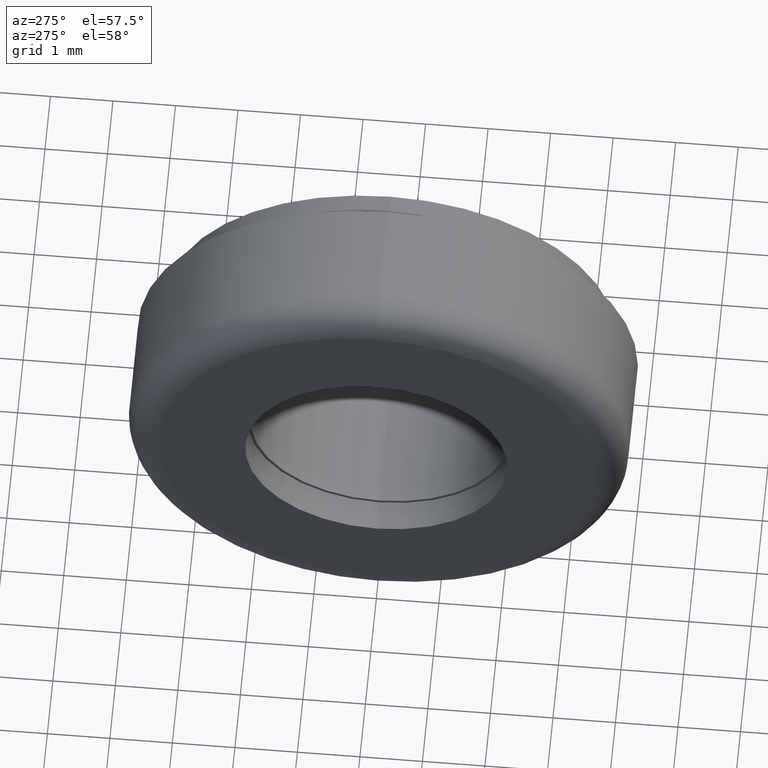
[diagram: clean part render]
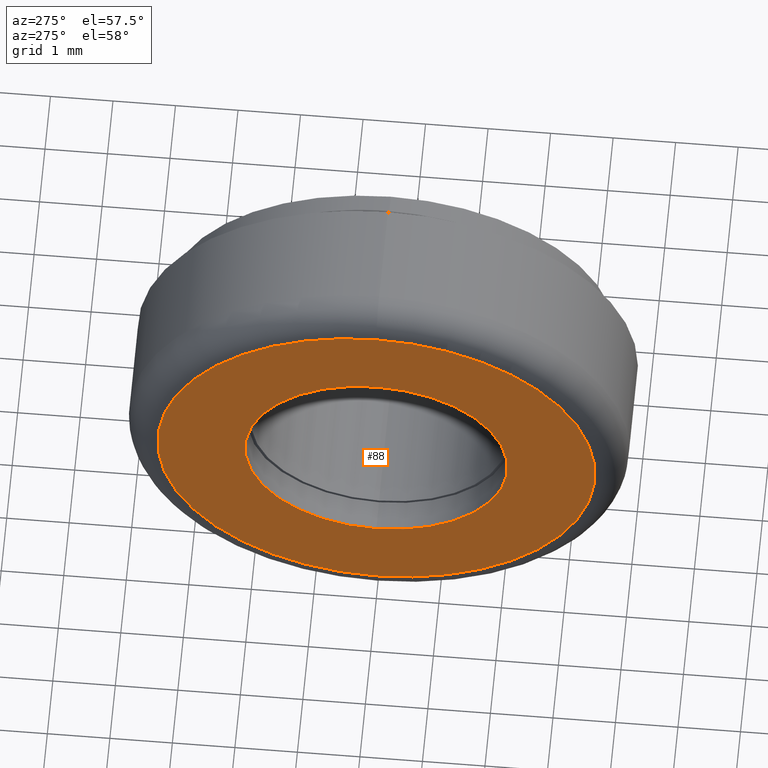
[diagram: same view with one face highlighted and labeled with its STEP entity id]
A machine part, auxiliary view. The second image highlights one B-rep face of the part: STEP entity #88.
In plain terms, the highlighted planar face has unit normal (1, 0, 0).
Its self-contained STEP definition (entity closure, byte-faithful):
#77 = DIRECTION ( 'NONE',  ( 0.0000000000000000000, 0.0000000000000000000, -1.000000000000000000 ) ) ;
#80 = DIRECTION ( 'NONE',  ( -1.000000000000000000, -0.0000000000000000000, -0.0000000000000000000 ) ) ;
#88 = ADVANCED_FACE ( 'NONE', ( #390, #593 ), #90, .F. ) ;
#90 = PLANE ( 'NONE',  #610 ) ;
#102 = CARTESIAN_POINT ( 'NONE',  ( 0.0000000000000000000, 0.0000000000000000000, 0.0000000000000000000 ) ) ;
#128 = CARTESIAN_POINT ( 'NONE',  ( 0.0000000000000000000, 0.0000000000000000000, 0.0000000000000000000 ) ) ;
#142 = EDGE_LOOP ( 'NONE', ( #695, #145 ) ) ;
#145 = ORIENTED_EDGE ( 'NONE', *, *, #444, .T. ) ;
#158 = EDGE_CURVE ( 'NONE', #381, #186, #346, .T. ) ;
#186 = VERTEX_POINT ( 'NONE', #553 ) ;
#194 = EDGE_CURVE ( 'NONE', #500, #379, #687, .T. ) ;
#241 = CARTESIAN_POINT ( 'NONE',  ( 0.0000000000000000000, 0.0000000000000000000, 0.0000000000000000000 ) ) ;
#269 = EDGE_LOOP ( 'NONE', ( #471, #456 ) ) ;
#290 = CARTESIAN_POINT ( 'NONE',  ( 0.0000000000000000000, 0.0000000000000000000, 0.0000000000000000000 ) ) ;
#346 = CIRCLE ( 'NONE', #531, 2.100000000000000100 ) ;
#379 = VERTEX_POINT ( 'NONE', #555 ) ;
#381 = VERTEX_POINT ( 'NONE', #539 ) ;
#390 = FACE_BOUND ( 'NONE', #269, .T. ) ;
#444 = EDGE_CURVE ( 'NONE', #379, #500, #652, .T. ) ;
#456 = ORIENTED_EDGE ( 'NONE', *, *, #623, .T. ) ;
#463 = DIRECTION ( 'NONE',  ( -1.000000000000000000, -0.0000000000000000000, -0.0000000000000000000 ) ) ;
#471 = ORIENTED_EDGE ( 'NONE', *, *, #158, .T. ) ;
#494 = DIRECTION ( 'NONE',  ( 0.0000000000000000000, 0.0000000000000000000, -1.000000000000000000 ) ) ;
#500 = VERTEX_POINT ( 'NONE', #602 ) ;
#513 = DIRECTION ( 'NONE',  ( 0.0000000000000000000, 0.0000000000000000000, -1.000000000000000000 ) ) ;
#516 = CARTESIAN_POINT ( 'NONE',  ( 0.0000000000000000000, 0.0000000000000000000, 0.0000000000000000000 ) ) ;
#531 = AXIS2_PLACEMENT_3D ( 'NONE', #516, #567, #513 ) ;
#539 = CARTESIAN_POINT ( 'NONE',  ( 0.0000000000000000000, 0.0000000000000000000, 2.100000000000000100 ) ) ;
#553 = CARTESIAN_POINT ( 'NONE',  ( 0.0000000000000000000, 2.571758278209442000E-016, -2.100000000000000100 ) ) ;
#555 = CARTESIAN_POINT ( 'NONE',  ( 0.0000000000000000000, 4.592425496802574000E-016, 3.500000000000000000 ) ) ;
#567 = DIRECTION ( 'NONE',  ( 1.000000000000000000, 0.0000000000000000000, 0.0000000000000000000 ) ) ;
#573 = DIRECTION ( 'NONE',  ( 1.000000000000000000, 0.0000000000000000000, 0.0000000000000000000 ) ) ;
#576 = AXIS2_PLACEMENT_3D ( 'NONE', #290, #590, #622 ) ;
#581 = AXIS2_PLACEMENT_3D ( 'NONE', #128, #80, #667 ) ;
#590 = DIRECTION ( 'NONE',  ( 1.000000000000000000, 0.0000000000000000000, 0.0000000000000000000 ) ) ;
#593 = FACE_OUTER_BOUND ( 'NONE', #142, .T. ) ;
#597 = AXIS2_PLACEMENT_3D ( 'NONE', #241, #463, #77 ) ;
#602 = CARTESIAN_POINT ( 'NONE',  ( 0.0000000000000000000, 0.0000000000000000000, -3.500000000000000000 ) ) ;
#610 = AXIS2_PLACEMENT_3D ( 'NONE', #102, #573, #494 ) ;
#622 = DIRECTION ( 'NONE',  ( 0.0000000000000000000, 0.0000000000000000000, -1.000000000000000000 ) ) ;
#623 = EDGE_CURVE ( 'NONE', #186, #381, #717, .T. ) ;
#652 = CIRCLE ( 'NONE', #597, 3.500000000000000000 ) ;
#667 = DIRECTION ( 'NONE',  ( 0.0000000000000000000, 0.0000000000000000000, -1.000000000000000000 ) ) ;
#687 = CIRCLE ( 'NONE', #581, 3.500000000000000000 ) ;
#695 = ORIENTED_EDGE ( 'NONE', *, *, #194, .T. ) ;
#717 = CIRCLE ( 'NONE', #576, 2.100000000000000100 ) ;